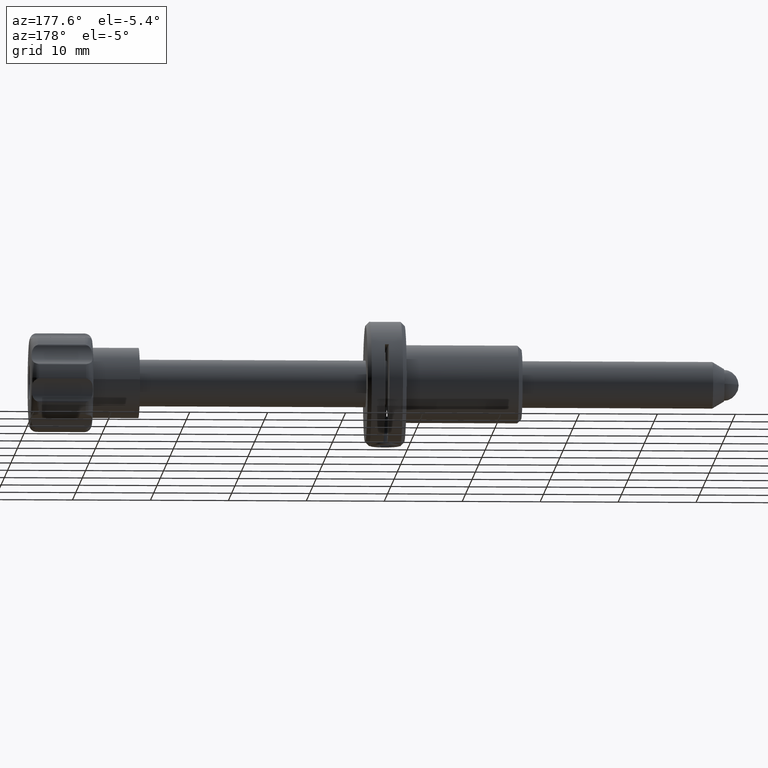
[diagram: clean part render]
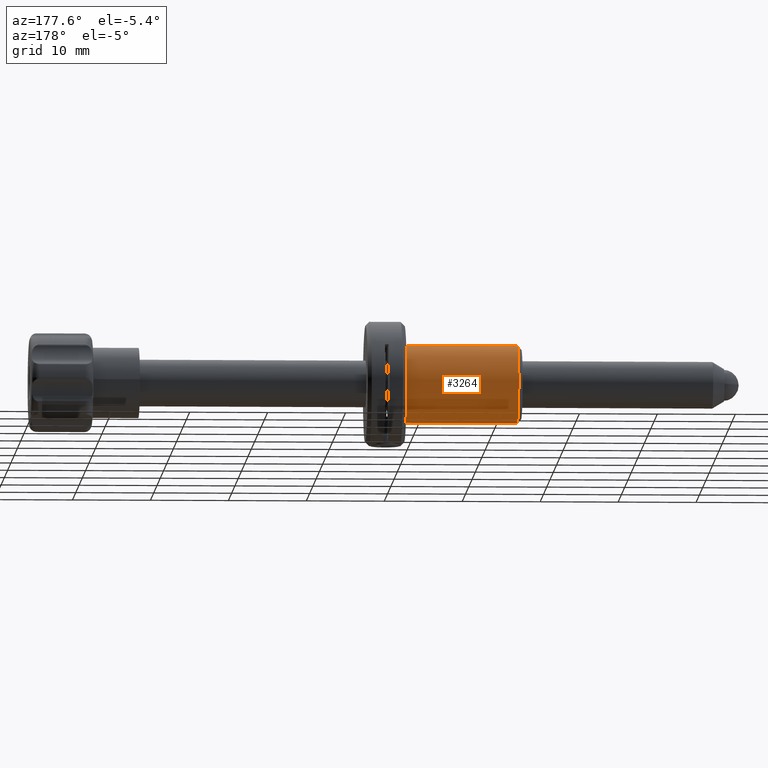
[diagram: same view with one face highlighted and labeled with its STEP entity id]
A machine part, auxiliary view. The second image highlights one B-rep face of the part: STEP entity #3264.
In plain terms, the highlighted cylindrical surface (partial cylindrical patch) has radius 5 mm, axis along (-1, -0, -0).
Its self-contained STEP definition (entity closure, byte-faithful):
#316 = CARTESIAN_POINT ( 'NONE',  ( -32.40644179797200800, 0.0000000000000000000, 4.999999999999999100 ) ) ;
#439 = VERTEX_POINT ( 'NONE', #4097 ) ;
#505 = FACE_OUTER_BOUND ( 'NONE', #1381, .T. ) ;
#513 = VECTOR ( 'NONE', #2410, 1000.000000000000000 ) ;
#617 = DIRECTION ( 'NONE',  ( 0.0000000000000000000, 0.0000000000000000000, 1.000000000000000000 ) ) ;
#678 = ORIENTED_EDGE ( 'NONE', *, *, #3314, .T. ) ;
#1207 = CIRCLE ( 'NONE', #1950, 4.999999999999999100 ) ;
#1314 = ORIENTED_EDGE ( 'NONE', *, *, #1956, .T. ) ;
#1343 = CARTESIAN_POINT ( 'NONE',  ( -14.54999999999999700, 6.123233995736765300E-016, -4.999999999999999100 ) ) ;
#1381 = EDGE_LOOP ( 'NONE', ( #1314, #1665, #678, #3441 ) ) ;
#1399 = VERTEX_POINT ( 'NONE', #3269 ) ;
#1444 = CARTESIAN_POINT ( 'NONE',  ( -14.54999999999999700, 0.0000000000000000000, 0.0000000000000000000 ) ) ;
#1651 = DIRECTION ( 'NONE',  ( -1.000000000000000000, -0.0000000000000000000, -0.0000000000000000000 ) ) ;
#1655 = CARTESIAN_POINT ( 'NONE',  ( -0.04999999999999449300, 6.123233995736766300E-016, -5.000000000000000000 ) ) ;
#1665 = ORIENTED_EDGE ( 'NONE', *, *, #3764, .T. ) ;
#1719 = CARTESIAN_POINT ( 'NONE',  ( -32.40644179797200800, 0.0000000000000000000, 0.0000000000000000000 ) ) ;
#1767 = DIRECTION ( 'NONE',  ( 0.0000000000000000000, 0.0000000000000000000, -1.000000000000000000 ) ) ;
#1945 = CIRCLE ( 'NONE', #2712, 5.000000000000000000 ) ;
#1950 = AXIS2_PLACEMENT_3D ( 'NONE', #1444, #3663, #1767 ) ;
#1956 = EDGE_CURVE ( 'NONE', #1399, #2771, #1945, .T. ) ;
#2086 = CARTESIAN_POINT ( 'NONE',  ( -32.40644179797200800, 6.123233995736765300E-016, -4.999999999999999100 ) ) ;
#2410 = DIRECTION ( 'NONE',  ( -1.000000000000000000, -0.0000000000000000000, -0.0000000000000000000 ) ) ;
#2660 = DIRECTION ( 'NONE',  ( -1.000000000000000000, -0.0000000000000000000, -0.0000000000000000000 ) ) ;
#2712 = AXIS2_PLACEMENT_3D ( 'NONE', #3803, #4163, #617 ) ;
#2771 = VERTEX_POINT ( 'NONE', #1655 ) ;
#2797 = VERTEX_POINT ( 'NONE', #1343 ) ;
#3085 = VECTOR ( 'NONE', #1651, 1000.000000000000000 ) ;
#3090 = LINE ( 'NONE', #2086, #513 ) ;
#3201 = EDGE_CURVE ( 'NONE', #1399, #439, #3937, .T. ) ;
#3264 = ADVANCED_FACE ( 'NONE', ( #505 ), #3518, .T. ) ;
#3269 = CARTESIAN_POINT ( 'NONE',  ( -0.04999999999999449300, 0.0000000000000000000, 5.000000000000000000 ) ) ;
#3314 = EDGE_CURVE ( 'NONE', #2797, #439, #1207, .T. ) ;
#3441 = ORIENTED_EDGE ( 'NONE', *, *, #3201, .F. ) ;
#3518 = CYLINDRICAL_SURFACE ( 'NONE', #3974, 4.999999999999999100 ) ;
#3663 = DIRECTION ( 'NONE',  ( 1.000000000000000000, 0.0000000000000000000, 0.0000000000000000000 ) ) ;
#3764 = EDGE_CURVE ( 'NONE', #2771, #2797, #3090, .T. ) ;
#3803 = CARTESIAN_POINT ( 'NONE',  ( -0.04999999999999449300, 0.0000000000000000000, 0.0000000000000000000 ) ) ;
#3937 = LINE ( 'NONE', #316, #3085 ) ;
#3954 = DIRECTION ( 'NONE',  ( 0.0000000000000000000, 0.0000000000000000000, 1.000000000000000000 ) ) ;
#3974 = AXIS2_PLACEMENT_3D ( 'NONE', #1719, #2660, #3954 ) ;
#4097 = CARTESIAN_POINT ( 'NONE',  ( -14.54999999999999700, 0.0000000000000000000, 4.999999999999999100 ) ) ;
#4163 = DIRECTION ( 'NONE',  ( -1.000000000000000000, -0.0000000000000000000, -0.0000000000000000000 ) ) ;